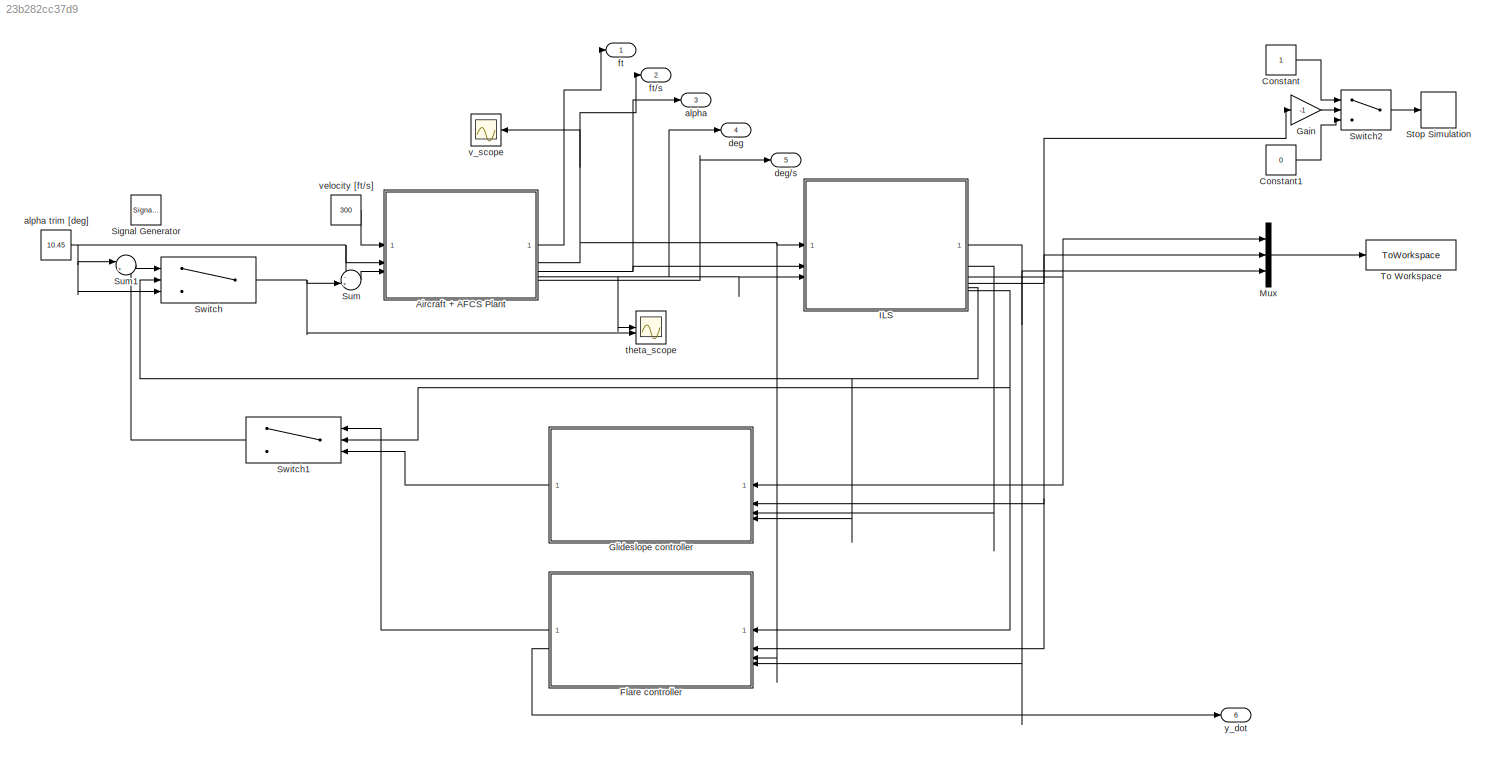
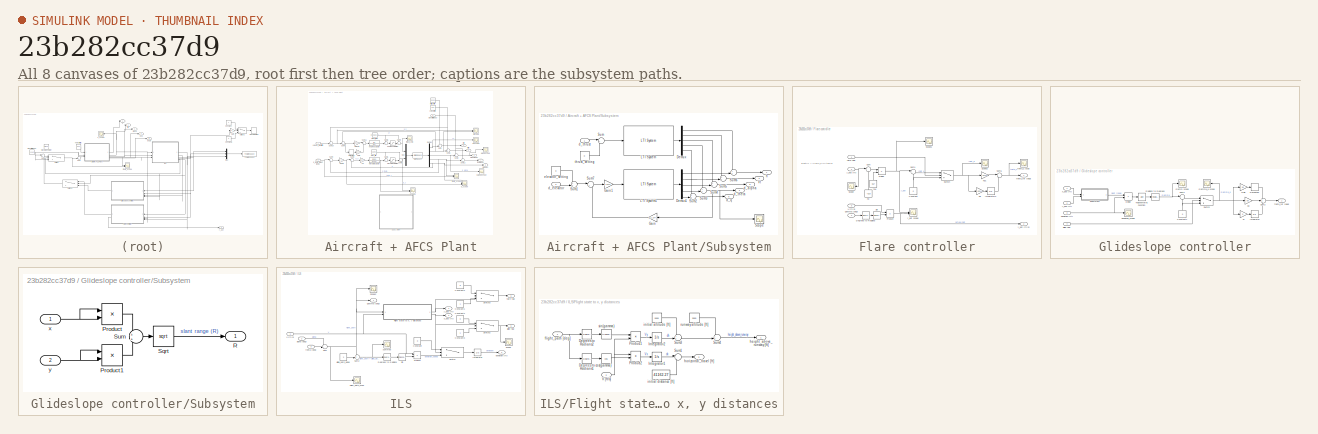
[diagram: thumbnail index - all 8 canvases of the model, root first then tree order]
MODEL slx_23b282cc37d9
KIND model
CONFIG AbsTol = auto
CONFIG EnableMultiTasking = off
CONFIG FixedStep = auto
CONFIG MaxStep = auto
CONFIG MinStep = auto
CONFIG RelTol = 1e-3
CONFIG SampleTimeConstraint = Unconstrained
CONFIG SolverName = VariableStepAuto
CONFIG StartTime = 0.0
CONFIG StopTime = 160
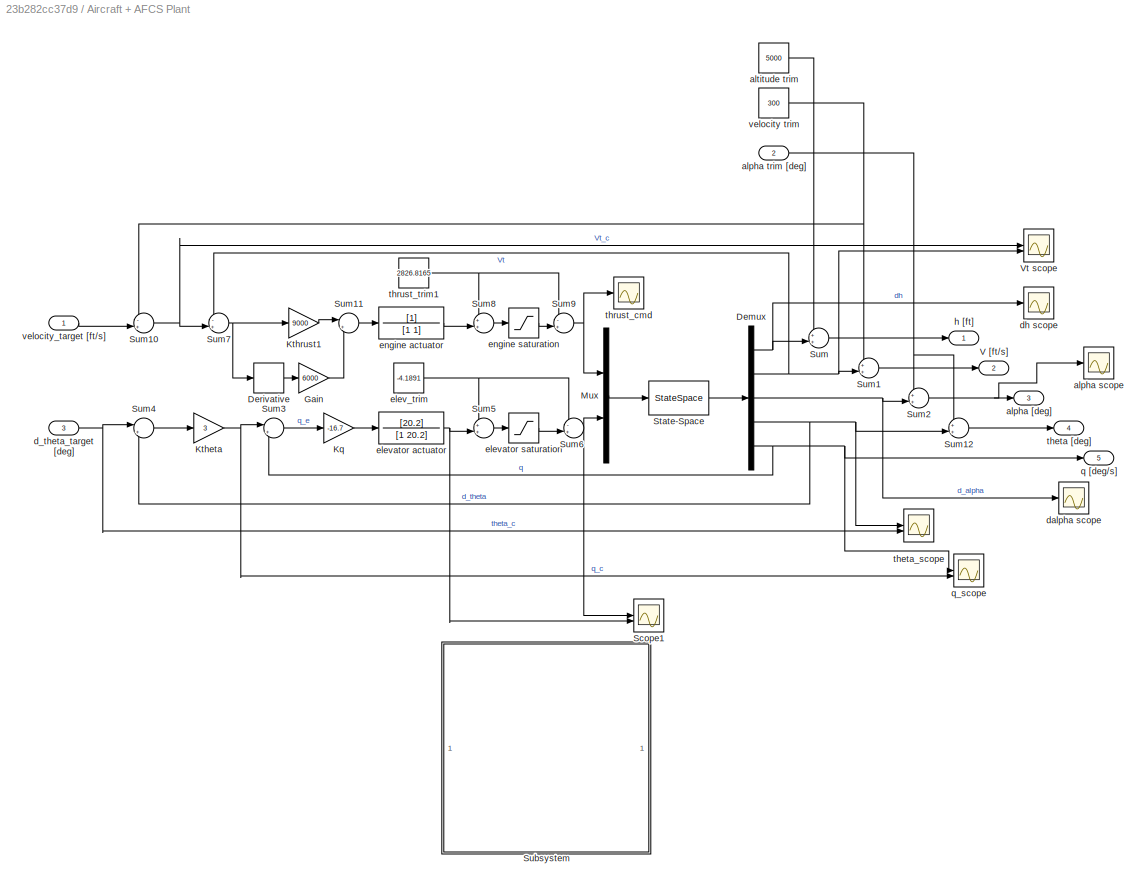
BLOCK [SubSystem] Aircraft + AFCS Plant
BLOCK [Demux] Aircraft + AFCS Plant/Demux
  Outputs = 5
BLOCK [Derivative] Aircraft + AFCS Plant/Derivative
BLOCK [Gain] Aircraft + AFCS Plant/Gain
  Gain = 6000
BLOCK [Gain] Aircraft + AFCS Plant/Kq
  Gain = -16.7
BLOCK [Gain] Aircraft + AFCS Plant/Ktheta
  Gain = 3
BLOCK [Gain] Aircraft + AFCS Plant/Kthrust1
  Gain = 9000
BLOCK [Mux] Aircraft + AFCS Plant/Mux
  DisplayOption = bar
  Inputs = 2
BLOCK [Scope] Aircraft + AFCS Plant/Scope1
  Floating = off
  NumInputPorts = 2
  ScopeSpecificationString = Simulink.scopes.TimeScopeBlockCfg('CurrentConfiguration', extmgr.ConfigurationSet(extmgr.Configuration('Core','General UI',true),extmgr.Configuration('Core','Source UI',true),extmgr.Configuration('Sources','WiredSimulink',true,'DataLoggingVariableName','ScopeData4'),extmgr.Configuration('Visuals','Time Domain',true,'SerializedDisplays',{struct('MinYLimReal','-1.00000','MaxYLimReal','1.00000','YLab...<+1416ch>
BLOCK [StateSpace] Aircraft + AFCS Plant/State-Space
  A = SS_glide_A
  B = SS_glide_B
  C = SS_glide_C
  D = SS_glide_D
  InitialCondition = 0
BLOCK [SubSystem] Aircraft + AFCS Plant/Subsystem
  Commented = on
BLOCK [Demux] Aircraft + AFCS Plant/Subsystem/Demux
  Outputs = 5
BLOCK [Demux] Aircraft + AFCS Plant/Subsystem/Demux1
  Outputs = 5
BLOCK [Gain] Aircraft + AFCS Plant/Subsystem/Gain
  Gain = 1/1.277
  NameLocation = top
BLOCK [Gain] Aircraft + AFCS Plant/Subsystem/Gain1
  Gain = 1.1277
BLOCK [Reference] Aircraft + AFCS Plant/Subsystem/LTI System  REF=cstblocks/LTI System
  SourceBlock = cstblocks/LTI System
  SourceType = LTI Block
BLOCK [Reference] Aircraft + AFCS Plant/Subsystem/LTI System1  REF=cstblocks/LTI System
  SourceBlock = cstblocks/LTI System
  SourceType = LTI Block
BLOCK [Scope] Aircraft + AFCS Plant/Subsystem/Scope
  Floating = off
  NumInputPorts = 1
  ScopeSpecificationString = Simulink.scopes.TimeScopeBlockCfg('CurrentConfiguration', extmgr.ConfigurationSet(extmgr.Configuration('Core','General UI',true),extmgr.Configuration('Core','Source UI',true),extmgr.Configuration('Sources','WiredSimulink',true,'DataLoggingVariableName','ScopeData1'),extmgr.Configuration('Visuals','Time Domain',true,'SerializedDisplays',{struct('MinYLimReal','-1.00000','MaxYLimReal','1.00000','YLab...<+1392ch>
BLOCK [Sum] Aircraft + AFCS Plant/Subsystem/Sum
  Inputs = |++
BLOCK [Sum] Aircraft + AFCS Plant/Subsystem/Sum1
  Inputs = ++|
BLOCK [Sum] Aircraft + AFCS Plant/Subsystem/Sum2
  Inputs = ++|
BLOCK [Sum] Aircraft + AFCS Plant/Subsystem/Sum3
  Inputs = ++|
BLOCK [Sum] Aircraft + AFCS Plant/Subsystem/Sum4
  Inputs = ++|
BLOCK [Sum] Aircraft + AFCS Plant/Subsystem/Sum5
  Inputs = ++|
BLOCK [Sum] Aircraft + AFCS Plant/Subsystem/Sum6
  Inputs = ++|
BLOCK [Sum] Aircraft + AFCS Plant/Subsystem/Sum7
  Inputs = |+-
BLOCK [Outport] Aircraft + AFCS Plant/Subsystem/Vt
  Port = 2
BLOCK [Outport] Aircraft + AFCS Plant/Subsystem/d_alpha
  Port = 3
BLOCK [Inport] Aircraft + AFCS Plant/Subsystem/d_elevator
  Port = 2
BLOCK [Outport] Aircraft + AFCS Plant/Subsystem/d_q
  Port = 5
BLOCK [Outport] Aircraft + AFCS Plant/Subsystem/d_theta
  Port = 4
BLOCK [Inport] Aircraft + AFCS Plant/Subsystem/d_thrust
BLOCK [Constant] Aircraft + AFCS Plant/Subsystem/elevator_setting
  Value = 0
BLOCK [Outport] Aircraft + AFCS Plant/Subsystem/h
BLOCK [Constant] Aircraft + AFCS Plant/Subsystem/thrust_setting
  Value = 0
BLOCK [Sum] Aircraft + AFCS Plant/Sum
  Inputs = ++|
BLOCK [Sum] Aircraft + AFCS Plant/Sum1
  Inputs = ++|
BLOCK [Sum] Aircraft + AFCS Plant/Sum10
  Inputs = -+|
BLOCK [Sum] Aircraft + AFCS Plant/Sum11
  Inputs = |++
BLOCK [Sum] Aircraft + AFCS Plant/Sum12
  Inputs = ++|
BLOCK [Sum] Aircraft + AFCS Plant/Sum2
  Inputs = ++|
BLOCK [Sum] Aircraft + AFCS Plant/Sum3
  Inputs = |+-
BLOCK [Sum] Aircraft + AFCS Plant/Sum4
  Inputs = |+-
BLOCK [Sum] Aircraft + AFCS Plant/Sum5
  Inputs = ++|
BLOCK [Sum] Aircraft + AFCS Plant/Sum6
  Inputs = -+|
BLOCK [Sum] Aircraft + AFCS Plant/Sum7
  Inputs = -+|
BLOCK [Sum] Aircraft + AFCS Plant/Sum8
  Inputs = ++|
BLOCK [Sum] Aircraft + AFCS Plant/Sum9
  Inputs = -+|
BLOCK [Outport] Aircraft + AFCS Plant/V [ft//s]
  Port = 2
BLOCK [Scope] Aircraft + AFCS Plant/Vt scope
  Floating = off
  NumInputPorts = 2
  ScopeSpecificationString = Simulink.scopes.TimeScopeBlockCfg('CurrentConfiguration', extmgr.ConfigurationSet(extmgr.Configuration('Core','General UI',true),extmgr.Configuration('Core','Source UI',true),extmgr.Configuration('Sources','WiredSimulink',true,'DataLoggingVariableName','ScopeData1'),extmgr.Configuration('Visuals','Time Domain',true,'SerializedDisplays',{struct('MinYLimReal','-225.00000','MaxYLimReal','25.00000','Y...<+1380ch>
BLOCK [Outport] Aircraft + AFCS Plant/alpha [deg]
  Port = 3
BLOCK [Scope] Aircraft + AFCS Plant/alpha scope
  Floating = off
  NumInputPorts = 1
  ScopeSpecificationString = Simulink.scopes.TimeScopeBlockCfg
BLOCK [Inport] Aircraft + AFCS Plant/alpha trim [deg]
  Port = 2
BLOCK [Constant] Aircraft + AFCS Plant/altitude trim
  Value = 5000
BLOCK [Inport] Aircraft + AFCS Plant/d_theta_target [deg]
  Port = 3
BLOCK [Scope] Aircraft + AFCS Plant/dalpha scope
  Floating = off
  NumInputPorts = 1
  ScopeSpecificationString = Simulink.scopes.TimeScopeBlockCfg('CurrentConfiguration', extmgr.ConfigurationSet(extmgr.Configuration('Core','General UI',true),extmgr.Configuration('Core','Source UI',true),extmgr.Configuration('Sources','WiredSimulink',true),extmgr.Configuration('Visuals','Time Domain',true,'SerializedDisplays',{struct('MinYLimReal','-1.00000','MaxYLimReal','1.00000','YLabelReal','','MinYLimMag','0.00000','MaxY...<+1327ch>
BLOCK [Scope] Aircraft + AFCS Plant/dh scope
  Floating = off
  NumInputPorts = 1
  ScopeSpecificationString = Simulink.scopes.TimeScopeBlockCfg('CurrentConfiguration', extmgr.ConfigurationSet(extmgr.Configuration('Core','General UI',true),extmgr.Configuration('Core','Source UI',true),extmgr.Configuration('Sources','WiredSimulink',true),extmgr.Configuration('Visuals','Time Domain',true,'SerializedDisplays',{struct('MinYLimReal','-1.00000','MaxYLimReal','1.00000','YLabelReal','','MinYLimMag','0.00000','MaxY...<+1322ch>
BLOCK [Constant] Aircraft + AFCS Plant/elev_trim
  Value = -4.1891
BLOCK [TransferFcn] Aircraft + AFCS Plant/elevator actuator
  Denominator = [1 20.2]
  Numerator = [20.2]
BLOCK [Saturate] Aircraft + AFCS Plant/elevator saturation
  LowerLimit = -25
  UpperLimit = 25
BLOCK [TransferFcn] Aircraft + AFCS Plant/engine actuator
  Denominator = [1 1]
BLOCK [Saturate] Aircraft + AFCS Plant/engine saturation
  LowerLimit = 1000
  UpperLimit = 19000
BLOCK [Outport] Aircraft + AFCS Plant/h [ft]
BLOCK [Outport] Aircraft + AFCS Plant/q [deg//s]
  Port = 5
BLOCK [Scope] Aircraft + AFCS Plant/q_scope
  Floating = off
  NumInputPorts = 2
  ScopeSpecificationString = Simulink.scopes.TimeScopeBlockCfg('CurrentConfiguration', extmgr.ConfigurationSet(extmgr.Configuration('Core','General UI',true),extmgr.Configuration('Core','Source UI',true),extmgr.Configuration('Sources','WiredSimulink',true),extmgr.Configuration('Visuals','Time Domain',true,'SerializedDisplays',{struct('MinYLimReal','-0.28632','MaxYLimReal','2.52621','YLabelReal','','MinYLimMag','0.00000','MaxY...<+1400ch>
BLOCK [Outport] Aircraft + AFCS Plant/theta [deg]
  Port = 4
BLOCK [Scope] Aircraft + AFCS Plant/theta_scope
  Floating = off
  NumInputPorts = 2
  ScopeSpecificationString = Simulink.scopes.TimeScopeBlockCfg('CurrentConfiguration', extmgr.ConfigurationSet(extmgr.Configuration('Core','General UI',true),extmgr.Configuration('Core','Source UI',true),extmgr.Configuration('Sources','WiredSimulink',true,'DataLoggingVariableName','ScopeData2'),extmgr.Configuration('Visuals','Time Domain',true,'SerializedDisplays',{struct('MinYLimReal','-4.51875','MaxYLimReal','-2.90668','YLa...<+1457ch>
BLOCK [Scope] Aircraft + AFCS Plant/thrust_cmd
  Floating = off
  NumInputPorts = 1
  ScopeSpecificationString = Simulink.scopes.TimeScopeBlockCfg('CurrentConfiguration', extmgr.ConfigurationSet(extmgr.Configuration('Core','General UI',true),extmgr.Configuration('Core','Source UI',true),extmgr.Configuration('Sources','WiredSimulink',true,'DataLoggingVariableName','ScopeData6'),extmgr.Configuration('Visuals','Time Domain',true,'SerializedDisplays',{struct('MinYLimReal','-1923.86169','MaxYLimReal','-1768.78948...<+1439ch>
BLOCK [Constant] Aircraft + AFCS Plant/thrust_trim1
  Value = 2826.8165
BLOCK [Constant] Aircraft + AFCS Plant/velocity trim
  Value = 300
BLOCK [Inport] Aircraft + AFCS Plant/velocity_target [ft//s]
BLOCK [Constant] Constant
BLOCK [Constant] Constant1
  Value = 0
BLOCK [SubSystem] Flare controller
  NameLocation = top
BLOCK [Constant] Flare controller/Constant
  NameLocation = right
  Value = 0
BLOCK [Reference] Flare controller/Degrees to Radians  REF=simulink_extras/Transformations/Degrees to
Radians
  SourceBlock = simulink_extras/Transformations/Degrees to\nRadians
  SourceType = DegreesToRadians
BLOCK [Product] Flare controller/Divide
  Inputs = */
BLOCK [Integrator] Flare controller/Integrator2
BLOCK [Gain] Flare controller/Ki1
  Gain = -0.014
BLOCK [Gain] Flare controller/Kp1
  Gain = -0.112
BLOCK [Product] Flare controller/Product
BLOCK [Scope] Flare controller/Scope
  Floating = off
  NameLocation = top
  NumInputPorts = 1
  ScopeSpecificationString = Simulink.scopes.TimeScopeBlockCfg('CurrentConfiguration', extmgr.ConfigurationSet(extmgr.Configuration('Core','General UI',true),extmgr.Configuration('Core','Source UI',true),extmgr.Configuration('Sources','WiredSimulink',true,'DataLoggingVariableName','ScopeData7'),extmgr.Configuration('Visuals','Time Domain',true,'SerializedDisplays',{struct('MinYLimReal','-250.13225','MaxYLimReal','2250.19026',...<+1414ch>
BLOCK [Scope] Flare controller/Scope1
  Floating = off
  NumInputPorts = 1
  ScopeSpecificationString = Simulink.scopes.TimeScopeBlockCfg('CurrentConfiguration', extmgr.ConfigurationSet(extmgr.Configuration('Core','General UI',true),extmgr.Configuration('Core','Source UI',true),extmgr.Configuration('Sources','WiredSimulink',true,'DataLoggingVariableName','ScopeData1'),extmgr.Configuration('Visuals','Time Domain',true,'SerializedDisplays',{struct('MinYLimReal','-615.66568','MaxYLimReal','65.92773','Y...<+1420ch>
BLOCK [Scope] Flare controller/Scope2
  Floating = off
  NumInputPorts = 1
  ScopeSpecificationString = Simulink.scopes.TimeScopeBlockCfg('CurrentConfiguration', extmgr.ConfigurationSet(extmgr.Configuration('Core','General UI',true),extmgr.Configuration('Core','Source UI',true),extmgr.Configuration('Sources','WiredSimulink',true,'DataLoggingVariableName','ScopeData2'),extmgr.Configuration('Visuals','Time Domain',true,'SerializedDisplays',{struct('MinYLimReal','-1.96526','MaxYLimReal','17.68733','YLa...<+1442ch>
BLOCK [Trigonometry] Flare controller/Sin
BLOCK [Sum] Flare controller/Sum
  Inputs = |-+
BLOCK [Sum] Flare controller/Sum1
  Inputs = |-+
BLOCK [Sum] Flare controller/Sum6
  Inputs = |++
BLOCK [Switch] Flare controller/Switch
  Criteria = u2 > Threshold
  InputSameDT = off
  SaturateOnIntegerOverflow = off
BLOCK [Inport] Flare controller/V [ft//s]
  Port = 3
BLOCK [Inport] Flare controller/flare flag
BLOCK [Inport] Flare controller/gamma [deg]
  Port = 4
BLOCK [Constant] Flare controller/h0
  NameLocation = right
  Value = -9.19
BLOCK [Constant] Flare controller/tau
  NameLocation = right
  Value = 3.67
BLOCK [Scope] Flare controller/theta_c scop
  Floating = off
  NumInputPorts = 1
  ScopeSpecificationString = Simulink.scopes.TimeScopeBlockCfg('CurrentConfiguration', extmgr.ConfigurationSet(extmgr.Configuration('Core','General UI',true),extmgr.Configuration('Core','Source UI',true),extmgr.Configuration('Sources','WiredSimulink',true,'DataLoggingVariableName','ScopeData4'),extmgr.Configuration('Visuals','Time Domain',true,'SerializedDisplays',{struct('MinYLimReal','-2.28167','MaxYLimReal','0.25352','YLab...<+1396ch>
BLOCK [Outport] Flare controller/theta_ref [deg]
BLOCK [Outport] Flare controller/y_dot [ft//s]
  Port = 2
BLOCK [Scope] Flare controller/y_dot scope
  Floating = off
  NumInputPorts = 2
  ScopeSpecificationString = Simulink.scopes.TimeScopeBlockCfg('CurrentConfiguration', extmgr.ConfigurationSet(extmgr.Configuration('Core','General UI',true),extmgr.Configuration('Core','Source UI',true),extmgr.Configuration('Sources','WiredSimulink',true,'DataLoggingVariableName','ScopeData5'),extmgr.Configuration('Visuals','Time Domain',true,'SerializedDisplays',{struct('MinYLimReal','-16.27504','MaxYLimReal','-1.37417','YL...<+1455ch>
BLOCK [Inport] Flare controller/y_pos [ft]
  Port = 2
BLOCK [Gain] Gain
  Gain = -1
BLOCK [SubSystem] Glideslope controller
  NameLocation = top
BLOCK [Constant] Glideslope controller/Constant1
  NameLocation = right
  Value = 0
BLOCK [Derivative] Glideslope controller/Derivative
BLOCK [Product] Glideslope controller/Divide
  Inputs = /*
BLOCK [Gain] Glideslope controller/Gain
  Gain = 30
BLOCK [Scope] Glideslope controller/Gamm scope
  Floating = off
  NumInputPorts = 1
  ScopeSpecificationString = Simulink.scopes.TimeScopeBlockCfg('CurrentConfiguration', extmgr.ConfigurationSet(extmgr.Configuration('Core','General UI',true),extmgr.Configuration('Core','Source UI',true),extmgr.Configuration('Sources','WiredSimulink',true,'DataLoggingVariableName','ScopeData7'),extmgr.Configuration('Visuals','Time Domain',true,'SerializedDisplays',{struct('MinYLimReal','-4.49034','MaxYLimReal','0.56499','YLab...<+1417ch>
BLOCK [Scope] Glideslope controller/Gamma_e scope
  Floating = off
  NameLocation = top
  NumInputPorts = 1
  ScopeSpecificationString = Simulink.scopes.TimeScopeBlockCfg('CurrentConfiguration', extmgr.ConfigurationSet(extmgr.Configuration('Core','General UI',true),extmgr.Configuration('Core','Source UI',true),extmgr.Configuration('Sources','WiredSimulink',true,'DataLoggingVariableName','ScopeData4'),extmgr.Configuration('Visuals','Time Domain',true,'SerializedDisplays',{struct('MinYLimReal','-0.56499','MaxYLimReal','4.49034','YLab...<+1391ch>
BLOCK [Integrator] Glideslope controller/Integrator
BLOCK [Gain] Glideslope controller/Ki
  Gain = 5
BLOCK [Gain] Glideslope controller/Kp
  Gain = 50
BLOCK [Reference] Glideslope controller/Radians to Degrees  REF=simulink_extras/Transformations/Radians
to Degrees
  SourceBlock = simulink_extras/Transformations/Radians\nto Degrees
  SourceType = RadiansToDegrees
BLOCK [SubSystem] Glideslope controller/Subsystem
BLOCK [Product] Glideslope controller/Subsystem/Product
BLOCK [Product] Glideslope controller/Subsystem/Product1
BLOCK [Outport] Glideslope controller/Subsystem/R
BLOCK [Sqrt] Glideslope controller/Subsystem/Sqrt
BLOCK [Sum] Glideslope controller/Subsystem/Sum
BLOCK [Inport] Glideslope controller/Subsystem/x
BLOCK [Inport] Glideslope controller/Subsystem/y
  Port = 2
BLOCK [Sum] Glideslope controller/Sum1
  Inputs = |-+
BLOCK [Sum] Glideslope controller/Sum2
  Inputs = +++
BLOCK [Switch] Glideslope controller/Switch
  Criteria = u2 > Threshold
  InputSameDT = off
  SaturateOnIntegerOverflow = off
BLOCK [Trigonometry] Glideslope controller/Trigonometric Function
  Operator = atan
BLOCK [Inport] Glideslope controller/deviation [ft]
  Port = 3
BLOCK [Scope] Glideslope controller/deviation_scope
  Floating = off
  NumInputPorts = 1
  ScopeSpecificationString = Simulink.scopes.TimeScopeBlockCfg('CurrentConfiguration', extmgr.ConfigurationSet(extmgr.Configuration('Core','General UI',true),extmgr.Configuration('Core','Source UI',true),extmgr.Configuration('Sources','WiredSimulink',true,'DataLoggingVariableName','ScopeData3'),extmgr.Configuration('Visuals','Time Domain',true,'SerializedDisplays',{struct('MinYLimReal','-148.55799','MaxYLimReal','26.74221','Y...<+1416ch>
BLOCK [Inport] Glideslope controller/glide flag
  Port = 4
BLOCK [Outport] Glideslope controller/theta_ref [deg]
BLOCK [Inport] Glideslope controller/x_pos [ft]
BLOCK [Inport] Glideslope controller/y_pos [ft]
  Port = 2
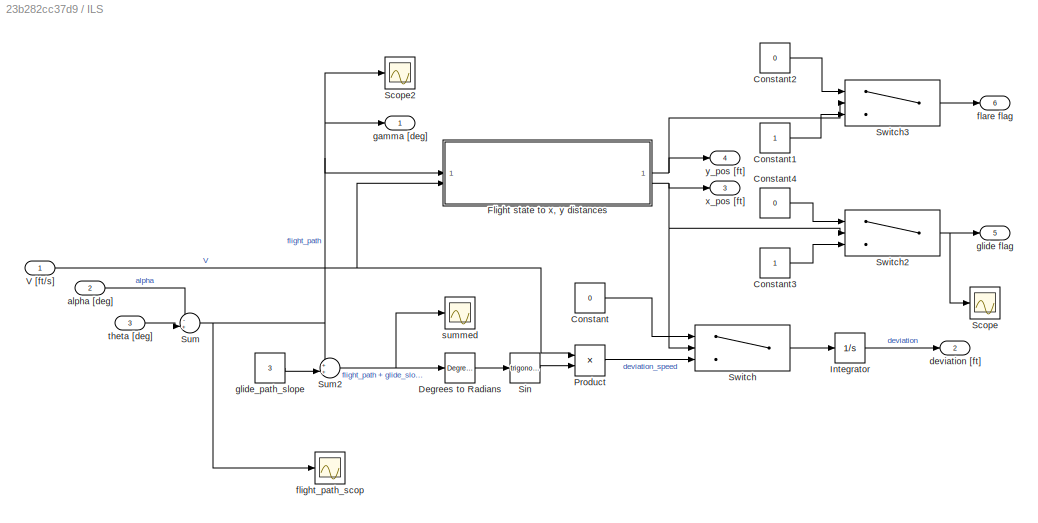
BLOCK [SubSystem] ILS
BLOCK [Constant] ILS/Constant
  Value = 0
BLOCK [Constant] ILS/Constant1
BLOCK [Constant] ILS/Constant2
  Value = 0
BLOCK [Constant] ILS/Constant3
BLOCK [Constant] ILS/Constant4
  Value = 0
BLOCK [Reference] ILS/Degrees to Radians  REF=simulink_extras/Transformations/Degrees to
Radians
  SourceBlock = simulink_extras/Transformations/Degrees to\nRadians
  SourceType = DegreesToRadians
BLOCK [SubSystem] ILS/Flight state to x, y distances
BLOCK [Reference] ILS/Flight state to x, y distances/Degrees to Radians1  REF=simulink_extras/Transformations/Degrees to
Radians
  SourceBlock = simulink_extras/Transformations/Degrees to\nRadians
  SourceType = DegreesToRadians
BLOCK [Reference] ILS/Flight state to x, y distances/Degrees to Radians2  REF=simulink_extras/Transformations/Degrees to
Radians
  SourceBlock = simulink_extras/Transformations/Degrees to\nRadians
  SourceType = DegreesToRadians
BLOCK [Integrator] ILS/Flight state to x, y distances/Integrator1
BLOCK [Integrator] ILS/Flight state to x, y distances/Integrator2
BLOCK [Product] ILS/Flight state to x, y distances/Product1
BLOCK [Product] ILS/Flight state to x, y distances/Product2
BLOCK [Sum] ILS/Flight state to x, y distances/Sum1
  Inputs = |-+
BLOCK [Sum] ILS/Flight state to x, y distances/Sum3
  Inputs = ++|
BLOCK [Sum] ILS/Flight state to x, y distances/Sum4
  Inputs = -+|
BLOCK [Inport] ILS/Flight state to x, y distances/V [ft//s]
  Port = 2
BLOCK [Trigonometry] ILS/Flight state to x, y distances/cos(gamma)
  Operator = cos
BLOCK [Inport] ILS/Flight state to x, y distances/flight_path [deg]
BLOCK [Outport] ILS/Flight state to x, y distances/height_above_runway [ft]
BLOCK [Outport] ILS/Flight state to x, y distances/horizontal_travel [ft]
  Port = 2
BLOCK [Constant] ILS/Flight state to x, y distances/initial altitude [ft]
  Value = 5000
BLOCK [Constant] ILS/Flight state to x, y distances/initial distance [ft]
  Value = 41162.27
BLOCK [Constant] ILS/Flight state to x, y distances/runway altitude [ft]
  Value = 3000
BLOCK [Trigonometry] ILS/Flight state to x, y distances/sin(gamma)
BLOCK [Integrator] ILS/Integrator
BLOCK [Product] ILS/Product
BLOCK [Scope] ILS/Scope
  Floating = off
  NumInputPorts = 1
  ScopeSpecificationString = Simulink.scopes.TimeScopeBlockCfg('CurrentConfiguration', extmgr.ConfigurationSet(extmgr.Configuration('Core','General UI',true),extmgr.Configuration('Core','Source UI',true),extmgr.Configuration('Sources','WiredSimulink',true,'DataLoggingVariableName','ScopeData1'),extmgr.Configuration('Visuals','Time Domain',true,'SerializedDisplays',{struct('MinYLimReal','-0.125','MaxYLimReal','1.125','YLabelRe...<+1383ch>
BLOCK [Scope] ILS/Scope2
  Floating = off
  NumInputPorts = 1
  ScopeSpecificationString = Simulink.scopes.TimeScopeBlockCfg('CurrentConfiguration', extmgr.ConfigurationSet(extmgr.Configuration('Core','General UI',true),extmgr.Configuration('Core','Source UI',true),extmgr.Configuration('Sources','WiredSimulink',true,'DataLoggingVariableName','ScopeData1'),extmgr.Configuration('Visuals','Time Domain',true,'SerializedDisplays',{struct('MinYLimReal','-15.00522','MaxYLimReal','1.83946','YLa...<+1422ch>
BLOCK [Trigonometry] ILS/Sin
BLOCK [Sum] ILS/Sum
  Inputs = -+|
BLOCK [Sum] ILS/Sum2
  Inputs = ++|
BLOCK [Switch] ILS/Switch
  Criteria = u2 > Threshold
  InputSameDT = off
  SaturateOnIntegerOverflow = off
  Threshold = 38162.27
BLOCK [Switch] ILS/Switch2
  Criteria = u2 > Threshold
  InputSameDT = off
  SaturateOnIntegerOverflow = off
  Threshold = 38162.27
BLOCK [Switch] ILS/Switch3
  Criteria = u2 > Threshold
  InputSameDT = off
  SaturateOnIntegerOverflow = off
  Threshold = 48.51
BLOCK [Inport] ILS/V [ft//s]
BLOCK [Inport] ILS/alpha [deg]
  Port = 2
BLOCK [Outport] ILS/deviation [ft]
  Port = 2
BLOCK [Outport] ILS/flare flag
  Port = 6
BLOCK [Scope] ILS/flight_path_scop
  Floating = off
  NumInputPorts = 1
  ScopeSpecificationString = Simulink.scopes.TimeScopeBlockCfg('CurrentConfiguration', extmgr.ConfigurationSet(extmgr.Configuration('Core','General UI',true),extmgr.Configuration('Core','Source UI',true),extmgr.Configuration('Sources','WiredSimulink',true,'DataLoggingVariableName','ScopeData1'),extmgr.Configuration('Visuals','Time Domain',true,'SerializedDisplays',{struct('MinYLimReal','-9.07214','MaxYLimReal','1.18012','YLab...<+1370ch>
BLOCK [Outport] ILS/gamma [deg]
BLOCK [Outport] ILS/glide flag
  Port = 5
BLOCK [Constant] ILS/glide_path_slope
  Value = 3
BLOCK [Scope] ILS/summed
  Floating = off
  NumInputPorts = 1
  ScopeSpecificationString = Simulink.scopes.TimeScopeBlockCfg('CurrentConfiguration', extmgr.ConfigurationSet(extmgr.Configuration('Core','General UI',true),extmgr.Configuration('Core','Source UI',true),extmgr.Configuration('Sources','WiredSimulink',true,'DataLoggingVariableName','ScopeData2'),extmgr.Configuration('Visuals','Time Domain',true,'SerializedDisplays',{struct('MinYLimReal','-6.07223','MaxYLimReal','4.18077','YLab...<+1384ch>
BLOCK [Inport] ILS/theta [deg]
  Port = 3
BLOCK [Outport] ILS/x_pos [ft]
  Port = 3
BLOCK [Outport] ILS/y_pos [ft]
  Port = 4
BLOCK [Mux] Mux
  DisplayOption = bar
  Inputs = 3
BLOCK [SignalGenerator] Signal Generator
  Commented = on
  Frequency = 0.6
  Units = rad/sec
  WaveForm = square
BLOCK [Stop] Stop Simulation
BLOCK [Sum] Sum
  Inputs = -+|
BLOCK [Sum] Sum1
  Inputs = |++
BLOCK [Switch] Switch
  Criteria = u2 > Threshold
  InputSameDT = off
  SaturateOnIntegerOverflow = off
BLOCK [Switch] Switch1
  Criteria = u2 > Threshold
  InputSameDT = off
  NameLocation = top
  SaturateOnIntegerOverflow = off
BLOCK [Switch] Switch2
  Criteria = u2 > Threshold
  InputSameDT = off
  SaturateOnIntegerOverflow = off
  Threshold = 1
BLOCK [ToWorkspace] To Workspace
  FixptAsFi = on
  MaxDataPoints = inf
  SampleTime = -1
  SaveFormat = Timeseries
  VariableName = simout
BLOCK [Outport] alpha
  Port = 3
  SignalName = alpha
BLOCK [Constant] alpha trim [deg]
  Value = 10.45
BLOCK [Outport] deg
  Port = 4
  SignalName = theta
BLOCK [Outport] deg//s
  Port = 5
  SignalName = q
BLOCK [Outport] ft
  SignalName = h
BLOCK [Outport] ft//s
  Port = 2
  SignalName = V
BLOCK [Scope] theta_scope
  Floating = off
  NumInputPorts = 2
  ScopeSpecificationString = Simulink.scopes.TimeScopeBlockCfg('CurrentConfiguration', extmgr.ConfigurationSet(extmgr.Configuration('Core','General UI',true),extmgr.Configuration('Core','Source UI',true),extmgr.Configuration('Sources','WiredSimulink',true,'DataLoggingVariableName','ScopeData2'),extmgr.Configuration('Visuals','Time Domain',true,'SerializedDisplays',{struct('MinYLimReal','6.43931','MaxYLimReal','10.19031','YLab...<+1467ch>
BLOCK [Scope] v_scope
  Floating = off
  NameLocation = top
  NumInputPorts = 1
  ScopeSpecificationString = Simulink.scopes.TimeScopeBlockCfg('CurrentConfiguration', extmgr.ConfigurationSet(extmgr.Configuration('Core','General UI',true),extmgr.Configuration('Core','Source UI',true),extmgr.Configuration('Sources','WiredSimulink',true,'DataLoggingVariableName','ScopeData5'),extmgr.Configuration('Visuals','Time Domain',true,'SerializedDisplays',{struct('MinYLimReal','293.78149','MaxYLimReal','338.55866','Y...<+1390ch>
BLOCK [Constant] velocity [ft//s]
  Value = 300
BLOCK [Outport] y_dot
  Port = 6
ANNOTATION Flare controller: $\dot{y} = \frac{h_0-y}{\tau}}$
NET Aircraft + AFCS Plant/Demux:1 -> Aircraft + AFCS Plant/Sum:2, Aircraft + AFCS Plant/dh scope:1
NET Aircraft + AFCS Plant/Demux:2 -> Aircraft + AFCS Plant/Sum1:2, Aircraft + AFCS Plant/Sum7:1, Aircraft + AFCS Plant/Vt scope:2
NET Aircraft + AFCS Plant/Demux:3 -> Aircraft + AFCS Plant/Sum2:2, Aircraft + AFCS Plant/dalpha scope:1
NET Aircraft + AFCS Plant/Demux:4 -> Aircraft + AFCS Plant/Sum12:2, Aircraft + AFCS Plant/Sum4:2, Aircraft + AFCS Plant/theta_scope:1
NET Aircraft + AFCS Plant/Demux:5 -> Aircraft + AFCS Plant/Sum3:2, Aircraft + AFCS Plant/q [deg//s]:1, Aircraft + AFCS Plant/q_scope:1
LINE Aircraft + AFCS Plant/Derivative:1 -> Aircraft + AFCS Plant/Gain:1
LINE Aircraft + AFCS Plant/Gain:1 -> Aircraft + AFCS Plant/Sum11:2
LINE Aircraft + AFCS Plant/Kq:1 -> Aircraft + AFCS Plant/elevator actuator:1
NET Aircraft + AFCS Plant/Ktheta:1 -> Aircraft + AFCS Plant/Sum3:1, Aircraft + AFCS Plant/q_scope:2
LINE Aircraft + AFCS Plant/Kthrust1:1 -> Aircraft + AFCS Plant/Sum11:1
LINE Aircraft + AFCS Plant/Mux:1 -> Aircraft + AFCS Plant/State-Space:1
LINE Aircraft + AFCS Plant/State-Space:1 -> Aircraft + AFCS Plant/Demux:1
LINE Aircraft + AFCS Plant/Subsystem/Demux1:1 -> Aircraft + AFCS Plant/Subsystem/Sum6:2
LINE Aircraft + AFCS Plant/Subsystem/Demux1:2 -> Aircraft + AFCS Plant/Subsystem/Sum5:2
LINE Aircraft + AFCS Plant/Subsystem/Demux1:3 -> Aircraft + AFCS Plant/Subsystem/Sum4:2
LINE Aircraft + AFCS Plant/Subsystem/Demux1:4 -> Aircraft + AFCS Plant/Subsystem/Sum3:2
LINE Aircraft + AFCS Plant/Subsystem/Demux1:5 -> Aircraft + AFCS Plant/Subsystem/Sum2:2
LINE Aircraft + AFCS Plant/Subsystem/Demux:1 -> Aircraft + AFCS Plant/Subsystem/Sum6:1
LINE Aircraft + AFCS Plant/Subsystem/Demux:2 -> Aircraft + AFCS Plant/Subsystem/Sum5:1
LINE Aircraft + AFCS Plant/Subsystem/Demux:3 -> Aircraft + AFCS Plant/Subsystem/Sum4:1
LINE Aircraft + AFCS Plant/Subsystem/Demux:4 -> Aircraft + AFCS Plant/Subsystem/Sum3:1
LINE Aircraft + AFCS Plant/Subsystem/Demux:5 -> Aircraft + AFCS Plant/Subsystem/Sum2:1
LINE Aircraft + AFCS Plant/Subsystem/Gain1:1 -> Aircraft + AFCS Plant/Subsystem/LTI System1:1
LINE Aircraft + AFCS Plant/Subsystem/Gain:1 -> Aircraft + AFCS Plant/Subsystem/Sum7:2
LINE Aircraft + AFCS Plant/Subsystem/LTI System1:1 -> Aircraft + AFCS Plant/Subsystem/Demux1:1
LINE Aircraft + AFCS Plant/Subsystem/LTI System:1 -> Aircraft + AFCS Plant/Subsystem/Demux:1
LINE Aircraft + AFCS Plant/Subsystem/Sum1:1 -> Aircraft + AFCS Plant/Subsystem/Sum7:1
LINE Aircraft + AFCS Plant/Subsystem/Sum2:1 -> Aircraft + AFCS Plant/Subsystem/d_q:1
NET Aircraft + AFCS Plant/Subsystem/Sum3:1 -> Aircraft + AFCS Plant/Subsystem/Gain:1, Aircraft + AFCS Plant/Subsystem/Scope:1, Aircraft + AFCS Plant/Subsystem/d_theta:1
LINE Aircraft + AFCS Plant/Subsystem/Sum4:1 -> Aircraft + AFCS Plant/Subsystem/d_alpha:1
LINE Aircraft + AFCS Plant/Subsystem/Sum5:1 -> Aircraft + AFCS Plant/Subsystem/Vt:1
LINE Aircraft + AFCS Plant/Subsystem/Sum6:1 -> Aircraft + AFCS Plant/Subsystem/h:1
LINE Aircraft + AFCS Plant/Subsystem/Sum7:1 -> Aircraft + AFCS Plant/Subsystem/Gain1:1
LINE Aircraft + AFCS Plant/Subsystem/Sum:1 -> Aircraft + AFCS Plant/Subsystem/LTI System:1
LINE Aircraft + AFCS Plant/Subsystem/d_elevator:1 -> Aircraft + AFCS Plant/Subsystem/Sum1:2
LINE Aircraft + AFCS Plant/Subsystem/d_thrust:1 -> Aircraft + AFCS Plant/Subsystem/Sum:1
LINE Aircraft + AFCS Plant/Subsystem/elevator_setting:1 -> Aircraft + AFCS Plant/Subsystem/Sum1:1
LINE Aircraft + AFCS Plant/Subsystem/thrust_setting:1 -> Aircraft + AFCS Plant/Subsystem/Sum:2
NET Aircraft + AFCS Plant/Sum10:1 -> Aircraft + AFCS Plant/Sum7:2, Aircraft + AFCS Plant/Vt scope:1
LINE Aircraft + AFCS Plant/Sum11:1 -> Aircraft + AFCS Plant/engine actuator:1
LINE Aircraft + AFCS Plant/Sum12:1 -> Aircraft + AFCS Plant/theta [deg]:1
LINE Aircraft + AFCS Plant/Sum1:1 -> Aircraft + AFCS Plant/V [ft//s]:1
NET Aircraft + AFCS Plant/Sum2:1 -> Aircraft + AFCS Plant/alpha [deg]:1, Aircraft + AFCS Plant/alpha scope:1
LINE Aircraft + AFCS Plant/Sum3:1 -> Aircraft + AFCS Plant/Kq:1
LINE Aircraft + AFCS Plant/Sum4:1 -> Aircraft + AFCS Plant/Ktheta:1
LINE Aircraft + AFCS Plant/Sum5:1 -> Aircraft + AFCS Plant/elevator saturation:1
NET Aircraft + AFCS Plant/Sum6:1 -> Aircraft + AFCS Plant/Mux:2, Aircraft + AFCS Plant/Scope1:1
NET Aircraft + AFCS Plant/Sum7:1 -> Aircraft + AFCS Plant/Derivative:1, Aircraft + AFCS Plant/Kthrust1:1
LINE Aircraft + AFCS Plant/Sum8:1 -> Aircraft + AFCS Plant/engine saturation:1
NET Aircraft + AFCS Plant/Sum9:1 -> Aircraft + AFCS Plant/Mux:1, Aircraft + AFCS Plant/thrust_cmd:1
LINE Aircraft + AFCS Plant/Sum:1 -> Aircraft + AFCS Plant/h [ft]:1
NET Aircraft + AFCS Plant/alpha trim [deg]:1 -> Aircraft + AFCS Plant/Sum12:1, Aircraft + AFCS Plant/Sum2:1
LINE Aircraft + AFCS Plant/altitude trim:1 -> Aircraft + AFCS Plant/Sum:1
NET Aircraft + AFCS Plant/d_theta_target [deg]:1 -> Aircraft + AFCS Plant/Sum4:1, Aircraft + AFCS Plant/theta_scope:2
NET Aircraft + AFCS Plant/elev_trim:1 -> Aircraft + AFCS Plant/Sum5:1, Aircraft + AFCS Plant/Sum6:1
NET Aircraft + AFCS Plant/elevator actuator:1 -> Aircraft + AFCS Plant/Scope1:2, Aircraft + AFCS Plant/Sum5:2
LINE Aircraft + AFCS Plant/elevator saturation:1 -> Aircraft + AFCS Plant/Sum6:2
LINE Aircraft + AFCS Plant/engine actuator:1 -> Aircraft + AFCS Plant/Sum8:2
LINE Aircraft + AFCS Plant/engine saturation:1 -> Aircraft + AFCS Plant/Sum9:2
NET Aircraft + AFCS Plant/thrust_trim1:1 -> Aircraft + AFCS Plant/Sum8:1, Aircraft + AFCS Plant/Sum9:1
NET Aircraft + AFCS Plant/velocity trim:1 -> Aircraft + AFCS Plant/Sum10:1, Aircraft + AFCS Plant/Sum1:1
LINE Aircraft + AFCS Plant/velocity_target [ft//s]:1 -> Aircraft + AFCS Plant/Sum10:2
LINE Aircraft + AFCS Plant:1 -> ft:1
NET Aircraft + AFCS Plant:2 -> Flare controller:3, ILS:1, ft//s:1, v_scope:1
NET Aircraft + AFCS Plant:3 -> ILS:2, alpha:1
NET Aircraft + AFCS Plant:4 -> ILS:3, deg:1, theta_scope:1
LINE Aircraft + AFCS Plant:5 -> deg//s:1
LINE Constant1:1 -> Switch2:3
LINE Constant:1 -> Switch2:1
NET Flare controller/Constant:1 -> Flare controller/Sum1:2, Flare controller/Switch:3
LINE Flare controller/Degrees to Radians:1 -> Flare controller/Sin:1
NET Flare controller/Divide:1 -> Flare controller/Scope1:1, Flare controller/Sum1:1, Flare controller/y_dot scope:1
LINE Flare controller/Integrator2:1 -> Flare controller/Sum6:2
LINE Flare controller/Ki1:1 -> Flare controller/Integrator2:1
LINE Flare controller/Kp1:1 -> Flare controller/Sum6:1
NET Flare controller/Product:1 -> Flare controller/y_dot [ft//s]:1, Flare controller/y_dot scope:2
LINE Flare controller/Sin:1 -> Flare controller/Product:2
LINE Flare controller/Sum1:1 -> Flare controller/Switch:1
NET Flare controller/Sum6:1 -> Flare controller/theta_c scop:1, Flare controller/theta_ref [deg]:1
LINE Flare controller/Sum:1 -> Flare controller/Divide:1
NET Flare controller/Switch:1 -> Flare controller/Ki1:1, Flare controller/Kp1:1, Flare controller/Scope2:1
LINE Flare controller/V [ft//s]:1 -> Flare controller/Product:1
LINE Flare controller/flare flag:1 -> Flare controller/Switch:2
LINE Flare controller/gamma [deg]:1 -> Flare controller/Degrees to Radians:1
LINE Flare controller/h0:1 -> Flare controller/Sum:2
LINE Flare controller/tau:1 -> Flare controller/Divide:2
NET Flare controller/y_pos [ft]:1 -> Flare controller/Scope:1, Flare controller/Sum:1
LINE Flare controller:1 -> Switch1:1
LINE Flare controller:2 -> y_dot:1
LINE Gain:1 -> Switch2:2
NET Glideslope controller/Constant1:1 -> Glideslope controller/Sum1:2, Glideslope controller/Switch:3
LINE Glideslope controller/Derivative:1 -> Glideslope controller/Sum2:1
LINE Glideslope controller/Divide:1 -> Glideslope controller/Trigonometric Function:1
LINE Glideslope controller/Gain:1 -> Glideslope controller/Derivative:1
LINE Glideslope controller/Integrator:1 -> Glideslope controller/Sum2:3
LINE Glideslope controller/Ki:1 -> Glideslope controller/Integrator:1
LINE Glideslope controller/Kp:1 -> Glideslope controller/Sum2:2
NET Glideslope controller/Radians to Degrees:1 -> Glideslope controller/Gamm scope:1, Glideslope controller/Sum1:1
LINE Glideslope controller/Subsystem/Product1:1 -> Glideslope controller/Subsystem/Sum:2
LINE Glideslope controller/Subsystem/Product:1 -> Glideslope controller/Subsystem/Sum:1
LINE Glideslope controller/Subsystem/Sqrt:1 -> Glideslope controller/Subsystem/R:1
LINE Glideslope controller/Subsystem/Sum:1 -> Glideslope controller/Subsystem/Sqrt:1
NET Glideslope controller/Subsystem/x:1 -> Glideslope controller/Subsystem/Product:1, Glideslope controller/Subsystem/Product:2
NET Glideslope controller/Subsystem/y:1 -> Glideslope controller/Subsystem/Product1:1, Glideslope controller/Subsystem/Product1:2
LINE Glideslope controller/Subsystem:1 -> Glideslope controller/Divide:1
LINE Glideslope controller/Sum1:1 -> Glideslope controller/Switch:1
LINE Glideslope controller/Sum2:1 -> Glideslope controller/theta_ref [deg]:1
NET Glideslope controller/Switch:1 -> Glideslope controller/Gain:1, Glideslope controller/Gamma_e scope:1, Glideslope controller/Ki:1, Glideslope controller/Kp:1
LINE Glideslope controller/Trigonometric Function:1 -> Glideslope controller/Radians to Degrees:1
NET Glideslope controller/deviation [ft]:1 -> Glideslope controller/Divide:2, Glideslope controller/deviation_scope:1
LINE Glideslope controller/glide flag:1 -> Glideslope controller/Switch:2
LINE Glideslope controller/x_pos [ft]:1 -> Glideslope controller/Subsystem:1
LINE Glideslope controller/y_pos [ft]:1 -> Glideslope controller/Subsystem:2
LINE Glideslope controller:1 -> Switch1:3
LINE ILS/Constant1:1 -> ILS/Switch3:3
LINE ILS/Constant2:1 -> ILS/Switch3:1
LINE ILS/Constant3:1 -> ILS/Switch2:3
LINE ILS/Constant4:1 -> ILS/Switch2:1
LINE ILS/Constant:1 -> ILS/Switch:1
LINE ILS/Degrees to Radians:1 -> ILS/Sin:1
LINE ILS/Flight state to x, y distances/Degrees to Radians1:1 -> ILS/Flight state to x, y distances/cos(gamma):1
LINE ILS/Flight state to x, y distances/Degrees to Radians2:1 -> ILS/Flight state to x, y distances/sin(gamma):1
LINE ILS/Flight state to x, y distances/Integrator1:1 -> ILS/Flight state to x, y distances/Sum1:1
LINE ILS/Flight state to x, y distances/Integrator2:1 -> ILS/Flight state to x, y distances/Sum3:2
LINE ILS/Flight state to x, y distances/Product1:1 -> ILS/Flight state to x, y distances/Integrator2:1
LINE ILS/Flight state to x, y distances/Product2:1 -> ILS/Flight state to x, y distances/Integrator1:1
LINE ILS/Flight state to x, y distances/Sum1:1 -> ILS/Flight state to x, y distances/horizontal_travel [ft]:1
LINE ILS/Flight state to x, y distances/Sum3:1 -> ILS/Flight state to x, y distances/Sum4:2
LINE ILS/Flight state to x, y distances/Sum4:1 -> ILS/Flight state to x, y distances/height_above_runway [ft]:1
NET ILS/Flight state to x, y distances/V [ft//s]:1 -> ILS/Flight state to x, y distances/Product1:2, ILS/Flight state to x, y distances/Product2:1
LINE ILS/Flight state to x, y distances/cos(gamma):1 -> ILS/Flight state to x, y distances/Product2:2
NET ILS/Flight state to x, y distances/flight_path [deg]:1 -> ILS/Flight state to x, y distances/Degrees to Radians1:1, ILS/Flight state to x, y distances/Degrees to Radians2:1
LINE ILS/Flight state to x, y distances/initial altitude [ft]:1 -> ILS/Flight state to x, y distances/Sum3:1
LINE ILS/Flight state to x, y distances/initial distance [ft]:1 -> ILS/Flight state to x, y distances/Sum1:2
LINE ILS/Flight state to x, y distances/runway altitude [ft]:1 -> ILS/Flight state to x, y distances/Sum4:1
LINE ILS/Flight state to x, y distances/sin(gamma):1 -> ILS/Flight state to x, y distances/Product1:1
NET ILS/Flight state to x, y distances:1 -> ILS/Switch3:2, ILS/y_pos [ft]:1
NET ILS/Flight state to x, y distances:2 -> ILS/Switch2:2, ILS/Switch:2, ILS/x_pos [ft]:1
LINE ILS/Integrator:1 -> ILS/deviation [ft]:1
LINE ILS/Product:1 -> ILS/Switch:3
LINE ILS/Sin:1 -> ILS/Product:2
NET ILS/Sum2:1 -> ILS/Degrees to Radians:1, ILS/summed:1
NET ILS/Sum:1 -> ILS/Flight state to x, y distances:1, ILS/Scope2:1, ILS/Sum2:1, ILS/flight_path_scop:1, ILS/gamma [deg]:1
NET ILS/Switch2:1 -> ILS/Scope:1, ILS/glide flag:1
LINE ILS/Switch3:1 -> ILS/flare flag:1
LINE ILS/Switch:1 -> ILS/Integrator:1
NET ILS/V [ft//s]:1 -> ILS/Flight state to x, y distances:2, ILS/Product:1
LINE ILS/alpha [deg]:1 -> ILS/Sum:1
LINE ILS/glide_path_slope:1 -> ILS/Sum2:2
LINE ILS/theta [deg]:1 -> ILS/Sum:2
NET ILS:1 -> Flare controller:4, Mux:3
LINE ILS:2 -> Glideslope controller:3
NET ILS:3 -> Glideslope controller:1, Mux:1
NET ILS:4 -> Flare controller:2, Gain:1, Glideslope controller:2, Mux:2
NET ILS:5 -> Glideslope controller:4, Switch:2
NET ILS:6 -> Flare controller:1, Switch1:2
LINE Mux:1 -> To Workspace:1
LINE Sum1:1 -> Switch:1
LINE Sum:1 -> Aircraft + AFCS Plant:3
LINE Switch1:1 -> Sum1:2
LINE Switch2:1 -> Stop Simulation:1
NET Switch:1 -> Sum:2, theta_scope:2
NET alpha trim [deg]:1 -> Aircraft + AFCS Plant:2, Sum1:1, Sum:1, Switch:3
LINE velocity [ft//s]:1 -> Aircraft + AFCS Plant:1
note: NET lines group one-source signal fan-out (src -> all destinations, sorted); 1:1 wires keep LINE
